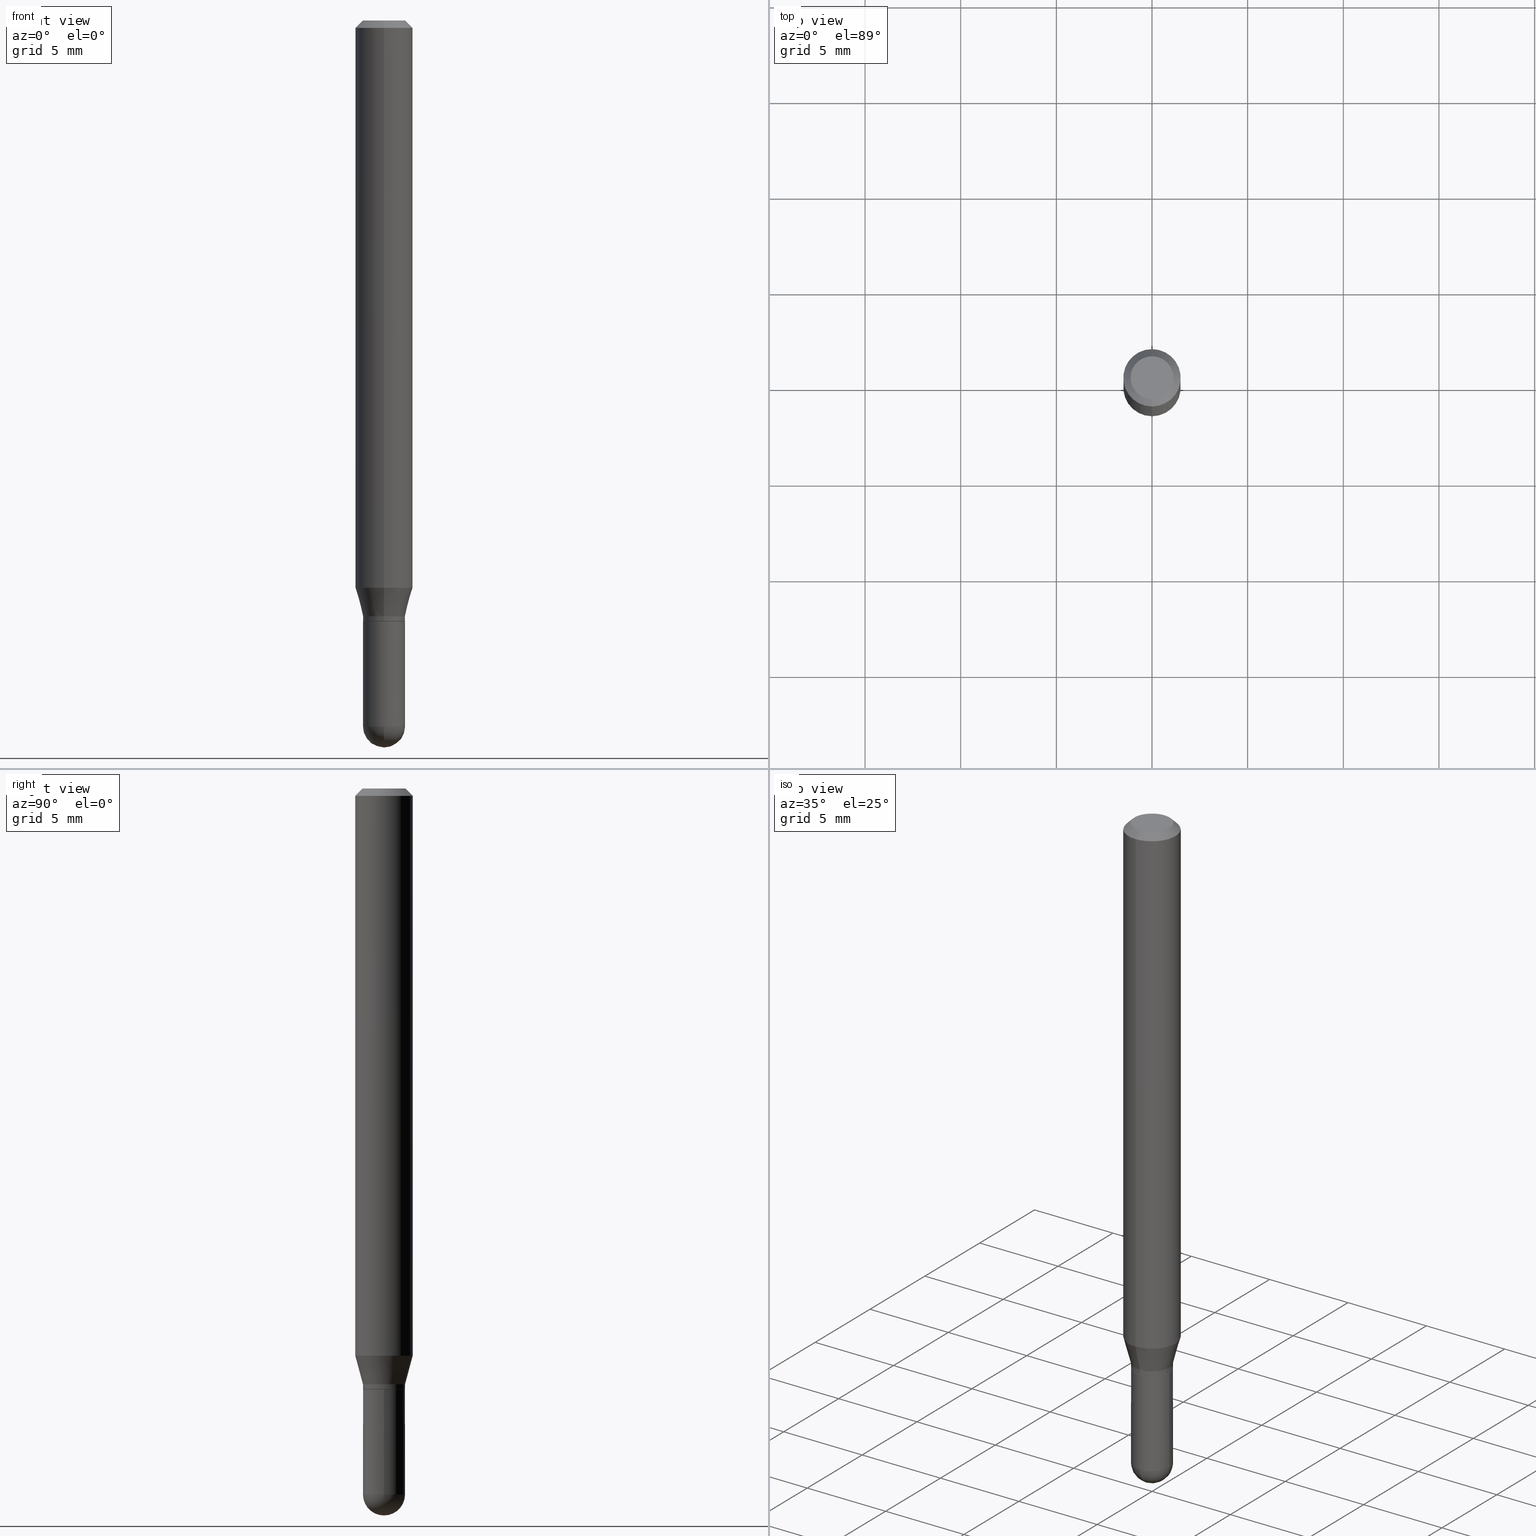
[diagram: canonical four-view strip — front | top / right | iso, engineering-drawing reading convention]
A machine part, canonical four-view strip (front | top / right | iso — engineering-drawing reading convention). The complete STEP part file that produces these views, byte-faithful:
ISO-10303-21;
HEADER;
FILE_DESCRIPTION (( 'STEP AP203' ),
    '1' );
FILE_NAME ('02951.STEP',
    '2024-03-07T22:00:29',
    ( '' ),
    ( '' ),
    'SwSTEP 2.0',
    'SolidWorks 2023',
    '' );
FILE_SCHEMA (( 'CONFIG_CONTROL_DESIGN' ));
ENDSEC;

DATA;
#1 = AXIS2_PLACEMENT_3D ( 'NONE', #422, #149, #453 ) ;
#2 = DIRECTION ( 'NONE',  ( -2.445468806185136597E-29, 3.491481338843145583E-15, 1.000000000000000000 ) ) ;
#3 = PERSON_AND_ORGANIZATION ( #497, #263 ) ;
#4 = CARTESIAN_POINT ( 'NONE',  ( 3.022054084796585019E-29, -4.314853214495008824E-15, -1.235800000000000010 ) ) ;
#5 = LINE ( 'NONE', #321, #451 ) ;
#6 = PERSON_AND_ORGANIZATION ( #497, #263 ) ;
#7 = EDGE_LOOP ( 'NONE', ( #326, #488, #469, #389 ) ) ;
#8 = VERTEX_POINT ( 'NONE', #12 ) ;
#9 = CARTESIAN_POINT ( 'NONE',  ( 3.549074211593619303E-29, -5.077726809711629884E-15, -1.452799999999999869 ) ) ;
#10 = PERSON_AND_ORGANIZATION_ROLE ( 'creator' ) ;
#11 = PRODUCT_RELATED_PRODUCT_CATEGORY ( 'detail', '', ( #296 ) ) ;
#12 = CARTESIAN_POINT ( 'NONE',  ( 3.636202450252602978E-16, 0.04329999999999564059, -1.226099999999999968 ) ) ;
#13 = FACE_OUTER_BOUND ( 'NONE', #207, .T. ) ;
#14 = AXIS2_PLACEMENT_3D ( 'NONE', #9, #445, #345 ) ;
#15 = VERTEX_POINT ( 'NONE', #438 ) ;
#16 = CARTESIAN_POINT ( 'NONE',  ( 0.04330000000000000515, -3.023622839438154129E-16, 2.111384543919640277E-30 ) ) ;
#17 = ORIENTED_EDGE ( 'NONE', *, *, #66, .F. ) ;
#18 = EDGE_CURVE ( 'NONE', #290, #242, #210, .T. ) ;
#19 = ORIENTED_EDGE ( 'NONE', *, *, #338, .F. ) ;
#20 = COORDINATED_UNIVERSAL_TIME_OFFSET ( 5, 0, .BEHIND. ) ;
#21 = FACE_OUTER_BOUND ( 'NONE', #277, .T. ) ;
#22 = AXIS2_PLACEMENT_3D ( 'NONE', #374, #188, #61 ) ;
#23 = CONICAL_SURFACE ( 'NONE', #309, 0.05904999999999999832, 0.7853981633974483900 ) ;
#24 = VECTOR ( 'NONE', #141, 39.37007874015748143 ) ;
#25 = CARTESIAN_POINT ( 'NONE',  ( 4.195754854663675961E-16, 0.05904999999999592519, -1.167320199780790491 ) ) ;
#26 = CARTESIAN_POINT ( 'NONE',  ( 3.022054084796585019E-29, -4.314853214495008824E-15, -1.235800000000000010 ) ) ;
#27 = DIRECTION ( 'NONE',  ( -6.982962677686265922E-15, -1.000000000000000000, 3.505890868245046092E-15 ) ) ;
#28 = FACE_OUTER_BOUND ( 'NONE', #67, .T. ) ;
#29 = CARTESIAN_POINT ( 'NONE',  ( 2.854591987387200469E-29, -4.075752804959620874E-15, -1.167320199780790269 ) ) ;
#30 = EDGE_CURVE ( 'NONE', #446, #260, #482, .T. ) ;
#31 = CIRCLE ( 'NONE', #314, 0.04329999999999964433 ) ;
#32 = AXIS2_PLACEMENT_3D ( 'NONE', #474, #129, #275 ) ;
#33 = ORIENTED_EDGE ( 'NONE', *, *, #506, .F. ) ;
#34 = LINE ( 'NONE', #420, #417 ) ;
#35 = COORDINATED_UNIVERSAL_TIME_OFFSET ( 5, 0, .BEHIND. ) ;
#36 = AXIS2_PLACEMENT_3D ( 'NONE', #177, #329, #94 ) ;
#37 = SECURITY_CLASSIFICATION ( '', '', #172 ) ;
#38 = DATE_AND_TIME ( #307, #404 ) ;
#39 = AXIS2_PLACEMENT_3D ( 'NONE', #487, #90, #97 ) ;
#40 = FACE_OUTER_BOUND ( 'NONE', #93, .T. ) ;
#41 = ORIENTED_EDGE ( 'NONE', *, *, #214, .F. ) ;
#42 = ORIENTED_EDGE ( 'NONE', *, *, #183, .T. ) ;
#43 = CARTESIAN_POINT ( 'NONE',  ( 3.023333085086683703E-29, -4.316518379211780118E-15, -1.236299999999999955 ) ) ;
#44 = LINE ( 'NONE', #448, #280 ) ;
#45 = PERSON_AND_ORGANIZATION_ROLE ( 'creator' ) ;
#46 = ORIENTED_EDGE ( 'NONE', *, *, #197, .F. ) ;
#47 = ORIENTED_EDGE ( 'NONE', *, *, #330, .T. ) ;
#48 = DIRECTION ( 'NONE',  ( -6.982962677686264344E-15, -1.000000000000000000, 3.491546540293744130E-15 ) ) ;
#49 = ORIENTED_EDGE ( 'NONE', *, *, #110, .F. ) ;
#50 = AXIS2_PLACEMENT_3D ( 'NONE', #456, #255, #220 ) ;
#51 = CIRCLE ( 'NONE', #238, 0.04329999999999999127 ) ;
#52 = EDGE_CURVE ( 'NONE', #15, #278, #125, .T. ) ;
#53 = ADVANCED_FACE ( 'NONE', ( #174 ), #327, .F. ) ;
#54 = MANIFOLD_SOLID_BREP ( 'Body-Move/Copy2[1]', #465 ) ;
#55 = ORIENTED_EDGE ( 'NONE', *, *, #464, .T. ) ;
#56 = CARTESIAN_POINT ( 'NONE',  ( -4.051124067684085231E-16, -0.05905000000000005383, -0.01499999999999988495 ) ) ;
#57 = PRODUCT_DEFINITION_SHAPE ( 'NONE', 'NONE',  #375 ) ;
#58 = ORIENTED_EDGE ( 'NONE', *, *, #30, .T. ) ;
#59 = DIRECTION ( 'NONE',  ( -2.445468806185136597E-29, 3.491481338843145583E-15, 1.000000000000000000 ) ) ;
#60 = ORIENTED_EDGE ( 'NONE', *, *, #334, .T. ) ;
#61 = DIRECTION ( 'NONE',  ( -6.982962677686265922E-15, -1.000000000000000000, 6.382822415103419870E-15 ) ) ;
#62 = AXIS2_PLACEMENT_3D ( 'NONE', #467, #322, #353 ) ;
#63 = EDGE_LOOP ( 'NONE', ( #409, #60 ) ) ;
#64 = DIRECTION ( 'NONE',  ( 2.445423276255530617E-29, -3.491546540293744130E-15, -1.000000000000000000 ) ) ;
#65 = CARTESIAN_POINT ( 'NONE',  ( 3.668134914383318048E-31, -5.237319810440648243E-17, -0.01500000000000009139 ) ) ;
#66 = EDGE_CURVE ( 'NONE', #449, #459, #272, .T. ) ;
#67 = EDGE_LOOP ( 'NONE', ( #92, #243, #298, #226 ) ) ;
#68 = CARTESIAN_POINT ( 'NONE',  ( 0.000000000000000000, 0.000000000000000000, 0.000000000000000000 ) ) ;
#69 = EDGE_CURVE ( 'NONE', #278, #8, #447, .T. ) ;
#70 = CC_DESIGN_SECURITY_CLASSIFICATION ( #37, ( #340 ) ) ;
#71 = CYLINDRICAL_SURFACE ( 'NONE', #80, 0.05904999999999999832 ) ;
#72 = MANIFOLD_SOLID_BREP ( 'Body-Move/Copy2[2]', #219 ) ;
#73 = AXIS2_PLACEMENT_3D ( 'NONE', #68, #348, #503 ) ;
#74 = AXIS2_PLACEMENT_3D ( 'NONE', #368, #137, #285 ) ;
#75 = CARTESIAN_POINT ( 'NONE',  ( 0.000000000000000000, 0.000000000000000000, 0.000000000000000000 ) ) ;
#76 = MECHANICAL_CONTEXT ( 'NONE', #504, 'mechanical' ) ;
#77 = CARTESIAN_POINT ( 'NONE',  ( 3.023622839438454882E-16, 0.04329999999999567528, -1.236300000000000177 ) ) ;
#78 = APPROVAL_STATUS ( 'not_yet_approved' ) ;
#79 = DIRECTION ( 'NONE',  ( -2.445423276255530617E-29, 3.491546540293744130E-15, 1.000000000000000000 ) ) ;
#80 = AXIS2_PLACEMENT_3D ( 'NONE', #75, #227, #457 ) ;
#81 = CIRCLE ( 'NONE', #107, 0.04279999999999999083 ) ;
#82 = DIRECTION ( 'NONE',  ( -2.445423276255530617E-29, 3.491546540293744130E-15, 1.000000000000000000 ) ) ;
#83 = CARTESIAN_POINT ( 'NONE',  ( 3.076650045841518654E-16, 0.04329999999999545324, -1.235800000000000232 ) ) ;
#84 =( NAMED_UNIT ( * ) SI_UNIT ( $, .STERADIAN. ) SOLID_ANGLE_UNIT ( ) );
#85 = VECTOR ( 'NONE', #414, 39.37007874015748143 ) ;
#86 = ADVANCED_FACE ( 'NONE', ( #151 ), #381, .T. ) ;
#87 = APPROVAL_PERSON_ORGANIZATION ( #429, #103, #512 ) ;
#88 = EDGE_LOOP ( 'NONE', ( #452, #399, #55, #266 ) ) ;
#89 = DIRECTION ( 'NONE',  ( -4.937700262164674260E-15, -0.7071067811865632269, 0.7071067811865319186 ) ) ;
#90 = DIRECTION ( 'NONE',  ( -2.445423276255530617E-29, 3.491546540293744130E-15, 1.000000000000000000 ) ) ;
#91 = APPROVAL_DATE_TIME ( #128, #256 ) ;
#92 = ORIENTED_EDGE ( 'NONE', *, *, #155, .F. ) ;
#93 = EDGE_LOOP ( 'NONE', ( #411, #505, #400, #245 ) ) ;
#94 = DIRECTION ( 'NONE',  ( -6.982962677686265133E-15, -1.000000000000000000, 3.491546540293743736E-15 ) ) ;
#95 = EDGE_LOOP ( 'NONE', ( #17, #215, #320, #133 ) ) ;
#96 = ORIENTED_EDGE ( 'NONE', *, *, #66, .T. ) ;
#97 = DIRECTION ( 'NONE',  ( -6.982962677686265922E-15, -1.000000000000000000, 3.154558884138878184E-15 ) ) ;
#98 = ADVANCED_FACE ( 'NONE', ( #225 ), #343, .T. ) ;
#99 = EDGE_LOOP ( 'NONE', ( #212, #203, #493, #47, #305 ) ) ;
#100 = CIRCLE ( 'NONE', #450, 0.04330000000000000515 ) ;
#101 = VERTEX_POINT ( 'NONE', #460 ) ;
#102 = ADVANCED_FACE ( 'NONE', ( #300 ), #496, .F. ) ;
#103 = APPROVAL ( #78, 'UNSPECIFIED' ) ;
#104 = CARTESIAN_POINT ( 'NONE',  ( 3.552777081625765848E-29, -5.072424089071321929E-15, -1.452799999999999869 ) ) ;
#105 = CALENDAR_DATE ( 2024, 7, 3 ) ;
#106 = LINE ( 'NONE', #180, #85 ) ;
#107 = AXIS2_PLACEMENT_3D ( 'NONE', #331, #369, #175 ) ;
#108 = CC_DESIGN_DATE_AND_TIME_ASSIGNMENT ( #38, #475, ( #37 ) ) ;
#109 = VERTEX_POINT ( 'NONE', #25 ) ;
#110 = EDGE_CURVE ( 'NONE', #8, #476, #237, .T. ) ;
#111 = DIRECTION ( 'NONE',  ( 1.000000000000000000, -6.982962677686267499E-15, 0.000000000000000000 ) ) ;
#112 = ORIENTED_EDGE ( 'NONE', *, *, #430, .T. ) ;
#113 = DIRECTION ( 'NONE',  ( -2.445423276255530617E-29, 3.491546540293744525E-15, 1.000000000000000000 ) ) ;
#114 = EDGE_CURVE ( 'NONE', #101, #446, #106, .T. ) ;
#115 = DIRECTION ( 'NONE',  ( -2.445423276255530617E-29, 3.491546540293744525E-15, 1.000000000000000000 ) ) ;
#116 = PERSON_AND_ORGANIZATION_ROLE ( 'classification_officer' ) ;
#117 = AXIS2_PLACEMENT_3D ( 'NONE', #4, #167, #246 ) ;
#118 = AXIS2_PLACEMENT_3D ( 'NONE', #473, #79, #162 ) ;
#119 = ORIENTED_EDGE ( 'NONE', *, *, #430, .F. ) ;
#120 = APPROVAL_PERSON_ORGANIZATION ( #3, #256, #396 ) ;
#121 = CC_DESIGN_DATE_AND_TIME_ASSIGNMENT ( #316, #131, ( #375 ) ) ;
#122 = DIRECTION ( 'NONE',  ( -2.445423276255530617E-29, 3.491546540293744130E-15, 1.000000000000000000 ) ) ;
#123 = CARTESIAN_POINT ( 'NONE',  ( -0.04329999999999999127, -4.386806229557427606E-15, -1.236299999999999955 ) ) ;
#124 = DIRECTION ( 'NONE',  ( -2.445423276255530617E-29, 3.491546540293744130E-15, 1.000000000000000000 ) ) ;
#125 = CIRCLE ( 'NONE', #117, 0.04329999999999964433 ) ;
#126 =( GEOMETRIC_REPRESENTATION_CONTEXT ( 3 ) GLOBAL_UNCERTAINTY_ASSIGNED_CONTEXT ( ( #304 ) ) GLOBAL_UNIT_ASSIGNED_CONTEXT ( ( #344, #196, #84 ) ) REPRESENTATION_CONTEXT ( 'NONE', 'WORKASPACE' ) );
#127 = CARTESIAN_POINT ( 'NONE',  ( -2.988708026049418867E-16, -0.04280000000000431376, -1.236299999999999288 ) ) ;
#128 = DATE_AND_TIME ( #281, #264 ) ;
#129 = DIRECTION ( 'NONE',  ( -2.445423276255530617E-29, 3.491546540293744130E-15, 1.000000000000000000 ) ) ;
#130 = CARTESIAN_POINT ( 'NONE',  ( 3.023276796434711539E-29, -4.316598987765154055E-15, -1.236299999999999510 ) ) ;
#131 = DATE_TIME_ROLE ( 'creation_date' ) ;
#132 = CIRCLE ( 'NONE', #471, 0.05904999999999999832 ) ;
#133 = ORIENTED_EDGE ( 'NONE', *, *, #185, .F. ) ;
#134 = AXIS2_PLACEMENT_3D ( 'NONE', #356, #193, #510 ) ;
#135 = VERTEX_POINT ( 'NONE', #303 ) ;
#136 =( LENGTH_UNIT ( ) NAMED_UNIT ( * ) SI_UNIT ( $, .METRE. ) );
#137 = DIRECTION ( 'NONE',  ( -2.445423276255530617E-29, 3.491546540293744130E-15, 1.000000000000000000 ) ) ;
#138 = DIRECTION ( 'NONE',  ( -6.982962677686265133E-15, -1.000000000000000000, 0.000000000000000000 ) ) ;
#139 = FACE_OUTER_BOUND ( 'NONE', #461, .T. ) ;
#140 = ORIENTED_EDGE ( 'NONE', *, *, #346, .F. ) ;
#141 = DIRECTION ( 'NONE',  ( 5.024295867788190974E-15, 0.7071067811865681119, 0.7071067811865270336 ) ) ;
#142 = EDGE_LOOP ( 'NONE', ( #287, #206, #217, #223 ) ) ;
#143 = AXIS2_PLACEMENT_3D ( 'NONE', #77, #498, #229 ) ;
#144 = LINE ( 'NONE', #56, #509 ) ;
#145 = AXIS2_PLACEMENT_3D ( 'NONE', #311, #122, #269 ) ;
#146 = ORIENTED_EDGE ( 'NONE', *, *, #470, .F. ) ;
#147 = DIRECTION ( 'NONE',  ( 6.982962677686265922E-15, 1.000000000000000000, -3.505890868245046092E-15 ) ) ;
#148 = EDGE_CURVE ( 'NONE', #8, #109, #351, .T. ) ;
#149 = DIRECTION ( 'NONE',  ( -2.445423276255530617E-29, 3.491546540293744130E-15, 1.000000000000000000 ) ) ;
#150 = APPROVAL ( #166, 'UNSPECIFIED' ) ;
#151 = FACE_OUTER_BOUND ( 'NONE', #95, .T. ) ;
#152 = DIRECTION ( 'NONE',  ( -2.445423276255530617E-29, 3.491546540293744525E-15, 1.000000000000000000 ) ) ;
#153 = AXIS2_PLACEMENT_3D ( 'NONE', #189, #391, #511 ) ;
#154 = DIRECTION ( 'NONE',  ( -2.445468806185136597E-29, 3.491481338843145583E-15, 1.000000000000000000 ) ) ;
#155 = EDGE_CURVE ( 'NONE', #109, #135, #34, .T. ) ;
#156 = ORIENTED_EDGE ( 'NONE', *, *, #330, .F. ) ;
#157 = DIRECTION ( 'NONE',  ( -2.445468806185136597E-29, 3.491481338843145583E-15, 1.000000000000000000 ) ) ;
#158 = CONICAL_SURFACE ( 'NONE', #134, 0.04279999999999999083, 0.7853981633974739252 ) ;
#159 = ADVANCED_FACE ( 'NONE', ( #337 ), #23, .T. ) ;
#160 = DIMENSIONAL_EXPONENTS ( 1.000000000000000000, 0.000000000000000000, 0.000000000000000000, 0.000000000000000000, 0.000000000000000000, 0.000000000000000000, 0.000000000000000000 ) ;
#161 = LOCAL_TIME ( 17, 0, 29.00000000000000000, #20 ) ;
#162 = DIRECTION ( 'NONE',  ( -6.982962677686265922E-15, -1.000000000000000000, 3.505890868245046092E-15 ) ) ;
#163 = ADVANCED_FACE ( 'NONE', ( #28 ), #71, .T. ) ;
#164 = COORDINATED_UNIVERSAL_TIME_OFFSET ( 5, 0, .BEHIND. ) ;
#165 = CIRCLE ( 'NONE', #153, 0.04330000000000000515 ) ;
#166 = APPROVAL_STATUS ( 'not_yet_approved' ) ;
#167 = DIRECTION ( 'NONE',  ( -2.445423276255530617E-29, 3.491546540293744130E-15, 1.000000000000000000 ) ) ;
#168 = DIRECTION ( 'NONE',  ( -2.445468806185136597E-29, 3.491481338843145583E-15, 1.000000000000000000 ) ) ;
#169 = DATE_AND_TIME ( #442, #441 ) ;
#170 = ORIENTED_EDGE ( 'NONE', *, *, #431, .T. ) ;
#171 = DIRECTION ( 'NONE',  ( 6.982962677686265922E-15, 1.000000000000000000, -3.505890868245046092E-15 ) ) ;
#172 = SECURITY_CLASSIFICATION_LEVEL ( 'unclassified' ) ;
#173 = EDGE_LOOP ( 'NONE', ( #190, #58 ) ) ;
#174 = FACE_OUTER_BOUND ( 'NONE', #370, .T. ) ;
#175 = DIRECTION ( 'NONE',  ( -6.982962677686265922E-15, -1.000000000000000000, 6.382822415103419870E-15 ) ) ;
#176 = VERTEX_POINT ( 'NONE', #387 ) ;
#177 = CARTESIAN_POINT ( 'NONE',  ( 2.241522435601996045E-45, -3.200419322498977883E-31, -9.166194079228073088E-17 ) ) ;
#178 = EDGE_LOOP ( 'NONE', ( #385, #405, #170, #350 ) ) ;
#179 = VERTEX_POINT ( 'NONE', #184 ) ;
#180 = CARTESIAN_POINT ( 'NONE',  ( -0.04330000000000000515, 3.076650045841234171E-16, -2.129898894080374053E-30 ) ) ;
#181 = AXIS2_PLACEMENT_3D ( 'NONE', #262, #499, #380 ) ;
#182 = AXIS2_PLACEMENT_3D ( 'NONE', #201, #2, #395 ) ;
#183 = EDGE_CURVE ( 'NONE', #278, #15, #31, .T. ) ;
#184 = CARTESIAN_POINT ( 'NONE',  ( -4.123439461173736383E-16, -0.05905000000000005383, -0.01499999999999988495 ) ) ;
#185 = EDGE_CURVE ( 'NONE', #459, #290, #100, .T. ) ;
#186 = DIRECTION ( 'NONE',  ( -6.982962677686266711E-15, -1.000000000000000000, 6.309117768277795812E-15 ) ) ;
#187 = LINE ( 'NONE', #500, #388 ) ;
#188 = DIRECTION ( 'NONE',  ( -2.445423276255530617E-29, 3.491546540293744130E-15, 1.000000000000000000 ) ) ;
#189 = CARTESIAN_POINT ( 'NONE',  ( 3.552777081625765848E-29, -5.072424089071321929E-15, -1.452799999999999869 ) ) ;
#190 = ORIENTED_EDGE ( 'NONE', *, *, #470, .T. ) ;
#191 = COORDINATED_UNIVERSAL_TIME_OFFSET ( 5, 0, .BEHIND. ) ;
#192 = FACE_OUTER_BOUND ( 'NONE', #424, .T. ) ;
#193 = DIRECTION ( 'NONE',  ( -2.445423276255530617E-29, 3.491546540293744130E-15, 1.000000000000000000 ) ) ;
#194 = EDGE_CURVE ( 'NONE', #15, #476, #306, .T. ) ;
#195 = CC_DESIGN_PERSON_AND_ORGANIZATION_ASSIGNMENT ( #274, #205, ( #340 ) ) ;
#196 =( NAMED_UNIT ( * ) PLANE_ANGLE_UNIT ( ) SI_UNIT ( $, .RADIAN. ) );
#197 = EDGE_CURVE ( 'NONE', #284, #455, #354, .T. ) ;
#198 = AXIS2_PLACEMENT_3D ( 'NONE', #333, #491, #294 ) ;
#199 = APPROVAL_DATE_TIME ( #169, #103 ) ;
#200 = SPHERICAL_SURFACE ( 'NONE', #349, 0.04330000000000003985 ) ;
#201 = CARTESIAN_POINT ( 'NONE',  ( 0.000000000000000000, 0.000000000000000000, 0.000000000000000000 ) ) ;
#202 = APPLICATION_PROTOCOL_DEFINITION ( 'international standard', 'config_control_design', 1994, #504 ) ;
#203 = ORIENTED_EDGE ( 'NONE', *, *, #214, .T. ) ;
#204 = DIRECTION ( 'NONE',  ( -6.982962677686265922E-15, -1.000000000000000000, 6.309117768277739014E-15 ) ) ;
#205 = PERSON_AND_ORGANIZATION_ROLE ( 'design_supplier' ) ;
#206 = ORIENTED_EDGE ( 'NONE', *, *, #155, .T. ) ;
#207 = EDGE_LOOP ( 'NONE', ( #495, #42, #365, #49 ) ) ;
#208 = FACE_OUTER_BOUND ( 'NONE', #7, .T. ) ;
#209 = ADVANCED_FACE ( 'NONE', ( #21 ), #297, .T. ) ;
#210 = CIRCLE ( 'NONE', #198, 0.04330000000000000515 ) ;
#211 = CONICAL_SURFACE ( 'NONE', #378, 0.04329999999999991495, 0.2617993877991512952 ) ;
#212 = ORIENTED_EDGE ( 'NONE', *, *, #114, .F. ) ;
#213 = FACE_OUTER_BOUND ( 'NONE', #173, .T. ) ;
#214 = EDGE_CURVE ( 'NONE', #101, #459, #308, .T. ) ;
#215 = ORIENTED_EDGE ( 'NONE', *, *, #401, .T. ) ;
#216 = APPROVAL_ROLE ( '' ) ;
#217 = ORIENTED_EDGE ( 'NONE', *, *, #431, .F. ) ;
#218 = DIRECTION ( 'NONE',  ( 1.000000000000000000, -6.982962677686269866E-15, 0.000000000000000000 ) ) ;
#219 = CLOSED_SHELL ( 'NONE', ( #209, #286, #393, #291, #342, #283, #163, #159, #102, #53, #382, #390 ) ) ;
#220 = DIRECTION ( 'NONE',  ( 6.982962677686265922E-15, 1.000000000000000000, -3.491546540293744525E-15 ) ) ;
#221 = AXIS2_PLACEMENT_3D ( 'NONE', #371, #248, #48 ) ;
#222 = CARTESIAN_POINT ( 'NONE',  ( 0.04329999999999999127, -4.618880663155595580E-15, -1.236299999999999955 ) ) ;
#223 = ORIENTED_EDGE ( 'NONE', *, *, #270, .F. ) ;
#224 = DIRECTION ( 'NONE',  ( -2.445423276255530617E-29, 3.491546540293744130E-15, 1.000000000000000000 ) ) ;
#225 = FACE_OUTER_BOUND ( 'NONE', #99, .T. ) ;
#226 = ORIENTED_EDGE ( 'NONE', *, *, #265, .F. ) ;
#227 = DIRECTION ( 'NONE',  ( -2.445423276255530617E-29, 3.491546540293744130E-15, 1.000000000000000000 ) ) ;
#228 = AXIS2_PLACEMENT_3D ( 'NONE', #29, #271, #364 ) ;
#229 = DIRECTION ( 'NONE',  ( -1.000000000000000000, 6.982962677686265922E-15, -4.876176775795935793E-29 ) ) ;
#230 = AXIS2_PLACEMENT_3D ( 'NONE', #410, #489, #171 ) ;
#231 = DIRECTION ( 'NONE',  ( -6.982962677686265922E-15, -1.000000000000000000, 3.491546540293744130E-15 ) ) ;
#232 = CC_DESIGN_PERSON_AND_ORGANIZATION_ASSIGNMENT ( #6, #267, ( #296 ) ) ;
#233 = CARTESIAN_POINT ( 'NONE',  ( 2.998333479016906095E-29, -4.280985213054159645E-15, -1.226099999999999968 ) ) ;
#234 = COORDINATED_UNIVERSAL_TIME_OFFSET ( 5, 0, .BEHIND. ) ;
#235 = FACE_OUTER_BOUND ( 'NONE', #372, .T. ) ;
#236 = ADVANCED_FACE ( 'NONE', ( #213 ), #458, .F. ) ;
#237 = CIRCLE ( 'NONE', #1, 0.04329999999999991495 ) ;
#238 = AXIS2_PLACEMENT_3D ( 'NONE', #43, #168, #295 ) ;
#239 = DIRECTION ( 'NONE',  ( -6.982962677686265922E-15, -1.000000000000000000, 3.491546540293744525E-15 ) ) ;
#240 = DIRECTION ( 'NONE',  ( 4.937700262164548042E-15, 0.7071067811865451302, -0.7071067811865499042 ) ) ;
#241 = PERSON_AND_ORGANIZATION ( #497, #263 ) ;
#242 = VERTEX_POINT ( 'NONE', #426 ) ;
#243 = ORIENTED_EDGE ( 'NONE', *, *, #276, .T. ) ;
#244 = DIRECTION ( 'NONE',  ( -1.807323732225337239E-15, -0.2588190451025191852, 0.9659258262890687563 ) ) ;
#245 = ORIENTED_EDGE ( 'NONE', *, *, #276, .F. ) ;
#246 = DIRECTION ( 'NONE',  ( -6.982962677686266711E-15, -1.000000000000000000, 6.309117768277795812E-15 ) ) ;
#247 = LINE ( 'NONE', #402, #24 ) ;
#248 = DIRECTION ( 'NONE',  ( -2.445423276255530617E-29, 3.491546540293744130E-15, 1.000000000000000000 ) ) ;
#249 = VECTOR ( 'NONE', #425, 39.37007874015748854 ) ;
#250 = CIRCLE ( 'NONE', #228, 0.05904999999999999832 ) ;
#251 = ORIENTED_EDGE ( 'NONE', *, *, #197, .T. ) ;
#252 = VERTEX_POINT ( 'NONE', #257 ) ;
#253 = DIRECTION ( 'NONE',  ( -2.445468806185136597E-29, 3.491481338843145583E-15, 1.000000000000000000 ) ) ;
#254 = AXIS2_PLACEMENT_3D ( 'NONE', #104, #253, #341 ) ;
#255 = DIRECTION ( 'NONE',  ( 2.445423276255530056E-29, -3.491546540293744525E-15, -1.000000000000000000 ) ) ;
#256 = APPROVAL ( #472, 'UNSPECIFIED' ) ;
#257 = CARTESIAN_POINT ( 'NONE',  ( -3.536586717851222218E-16, -0.04404999999999999888, 6.214068430765867686E-17 ) ) ;
#258 = ORIENTED_EDGE ( 'NONE', *, *, #352, .F. ) ;
#259 = CARTESIAN_POINT ( 'NONE',  ( -3.023622839438137365E-16, -0.04329999999999978311, 1.511839651947183576E-16 ) ) ;
#260 = VERTEX_POINT ( 'NONE', #222 ) ;
#261 = CARTESIAN_POINT ( 'NONE',  ( 0.000000000000000000, 0.000000000000000000, 0.000000000000000000 ) ) ;
#262 = CARTESIAN_POINT ( 'NONE',  ( 3.549074211593619303E-29, -5.077726809711629884E-15, -1.452799999999999869 ) ) ;
#263 = ORGANIZATION ( 'UNSPECIFIED', 'UNSPECIFIED', '' ) ;
#264 = LOCAL_TIME ( 17, 0, 29.00000000000000000, #234 ) ;
#265 = EDGE_CURVE ( 'NONE', #135, #179, #132, .T. ) ;
#266 = ORIENTED_EDGE ( 'NONE', *, *, #265, .T. ) ;
#267 = PERSON_AND_ORGANIZATION_ROLE ( 'design_owner' ) ;
#268 = DIRECTION ( 'NONE',  ( -6.982962677686265922E-15, -1.000000000000000000, 3.154558884138878184E-15 ) ) ;
#269 = DIRECTION ( 'NONE',  ( -6.982962677686265922E-15, -1.000000000000000000, 3.154558884138878184E-15 ) ) ;
#270 = EDGE_CURVE ( 'NONE', #176, #179, #187, .T. ) ;
#271 = DIRECTION ( 'NONE',  ( -2.445423276255530617E-29, 3.491546540293744130E-15, 1.000000000000000000 ) ) ;
#272 = CIRCLE ( 'NONE', #397, 0.04330000000000003985 ) ;
#273 = CIRCLE ( 'NONE', #118, 0.05904999999999999832 ) ;
#274 = PERSON_AND_ORGANIZATION ( #497, #263 ) ;
#275 = DIRECTION ( 'NONE',  ( -6.982962677686265133E-15, -1.000000000000000000, 3.491546540293743736E-15 ) ) ;
#276 = EDGE_CURVE ( 'NONE', #109, #176, #250, .T. ) ;
#277 = EDGE_LOOP ( 'NONE', ( #282, #477, #119, #366 ) ) ;
#278 = VERTEX_POINT ( 'NONE', #83 ) ;
#279 = CARTESIAN_POINT ( 'NONE',  ( -3.023622839437799634E-16, -0.04330000000000509136, -1.452799999999999647 ) ) ;
#280 = VECTOR ( 'NONE', #244, 39.37007874015748854 ) ;
#281 = CALENDAR_DATE ( 2024, 7, 3 ) ;
#282 = ORIENTED_EDGE ( 'NONE', *, *, #52, .T. ) ;
#283 = ADVANCED_FACE ( 'NONE', ( #40 ), #211, .T. ) ;
#284 = VERTEX_POINT ( 'NONE', #127 ) ;
#285 = DIRECTION ( 'NONE',  ( -6.982962677686265922E-15, -1.000000000000000000, 6.382822415103419870E-15 ) ) ;
#286 = ADVANCED_FACE ( 'NONE', ( #192 ), #158, .T. ) ;
#287 = ORIENTED_EDGE ( 'NONE', *, *, #346, .T. ) ;
#288 = LENGTH_MEASURE_WITH_UNIT ( LENGTH_MEASURE( 0.02539999999999999897 ), #136 );
#289 = CARTESIAN_POINT ( 'NONE',  ( 2.854591987387200469E-29, -4.075752804959620874E-15, -1.167320199780790269 ) ) ;
#290 = VERTEX_POINT ( 'NONE', #358 ) ;
#291 = ADVANCED_FACE ( 'NONE', ( #357 ), #313, .T. ) ;
#292 = VECTOR ( 'NONE', #115, 39.37007874015748143 ) ;
#293 = AXIS2_PLACEMENT_3D ( 'NONE', #289, #403, #478 ) ;
#294 = DIRECTION ( 'NONE',  ( 1.000000000000000000, -6.982962677686267499E-15, 0.000000000000000000 ) ) ;
#295 = DIRECTION ( 'NONE',  ( 1.000000000000000000, -6.982962677686269866E-15, 0.000000000000000000 ) ) ;
#296 = PRODUCT ( '02951', '02951', '', ( #76 ) ) ;
#297 = CYLINDRICAL_SURFACE ( 'NONE', #73, 0.04329999999999978311 ) ;
#298 = ORIENTED_EDGE ( 'NONE', *, *, #270, .T. ) ;
#299 = CARTESIAN_POINT ( 'NONE',  ( 3.076650045841217901E-16, 0.04329999999999978311, -1.511839651947183576E-16 ) ) ;
#300 = FACE_OUTER_BOUND ( 'NONE', #63, .T. ) ;
#301 = AXIS2_PLACEMENT_3D ( 'NONE', #434, #82, #231 ) ;
#302 = ADVANCED_FACE ( 'NONE', ( #394 ), #435, .T. ) ;
#303 = CARTESIAN_POINT ( 'NONE',  ( 4.195754854663679906E-16, 0.05904999999999995669, -0.01500000000000029955 ) ) ;
#304 = UNCERTAINTY_MEASURE_WITH_UNIT (LENGTH_MEASURE( 1.000000000000000082E-05 ), #344, 'distance_accuracy_value', 'NONE');
#305 = ORIENTED_EDGE ( 'NONE', *, *, #30, .F. ) ;
#306 = LINE ( 'NONE', #259, #292 ) ;
#307 = CALENDAR_DATE ( 2024, 7, 3 ) ;
#308 = CIRCLE ( 'NONE', #254, 0.04330000000000000515 ) ;
#309 = AXIS2_PLACEMENT_3D ( 'NONE', #384, #64, #147 ) ;
#310 = CC_DESIGN_APPROVAL ( #256, ( #340 ) ) ;
#311 = CARTESIAN_POINT ( 'NONE',  ( 2.998333479016906095E-29, -4.280985213054159645E-15, -1.226099999999999968 ) ) ;
#312 = EDGE_CURVE ( 'NONE', #490, #252, #336, .T. ) ;
#313 = CYLINDRICAL_SURFACE ( 'NONE', #301, 0.05904999999999999832 ) ;
#314 = AXIS2_PLACEMENT_3D ( 'NONE', #26, #224, #186 ) ;
#315 = VECTOR ( 'NONE', #440, 39.37007874015748143 ) ;
#316 = DATE_AND_TIME ( #480, #355 ) ;
#317 = PERSON_AND_ORGANIZATION ( #497, #263 ) ;
#318 = APPROVAL_PERSON_ORGANIZATION ( #362, #150, #216 ) ;
#319 = ORIENTED_EDGE ( 'NONE', *, *, #52, .F. ) ;
#320 = ORIENTED_EDGE ( 'NONE', *, *, #18, .F. ) ;
#321 = CARTESIAN_POINT ( 'NONE',  ( -2.988708026049418867E-16, -0.04280000000000431376, -1.236299999999999288 ) ) ;
#322 = DIRECTION ( 'NONE',  ( 0.000000000000000000, 0.000000000000000000, 1.000000000000000000 ) ) ;
#323 = ORIENTED_EDGE ( 'NONE', *, *, #419, .T. ) ;
#324 = CYLINDRICAL_SURFACE ( 'NONE', #221, 0.04329999999999978311 ) ;
#325 = CIRCLE ( 'NONE', #36, 0.04404999999999999888 ) ;
#326 = ORIENTED_EDGE ( 'NONE', *, *, #479, .F. ) ;
#327 = PLANE ( 'NONE',  #501 ) ;
#328 = DIRECTION ( 'NONE',  ( -4.851104656540964275E-15, -0.7071067811865500152, -0.7071067811865450192 ) ) ;
#329 = DIRECTION ( 'NONE',  ( -2.445423276255530617E-29, 3.491546540293744130E-15, 1.000000000000000000 ) ) ;
#330 = EDGE_CURVE ( 'NONE', #290, #260, #436, .T. ) ;
#331 = CARTESIAN_POINT ( 'NONE',  ( 3.023276796434711539E-29, -4.316598987765154055E-15, -1.236299999999999510 ) ) ;
#332 = ORIENTED_EDGE ( 'NONE', *, *, #18, .T. ) ;
#333 = CARTESIAN_POINT ( 'NONE',  ( 3.552777081625765848E-29, -5.072424089071321929E-15, -1.452799999999999869 ) ) ;
#334 = EDGE_CURVE ( 'NONE', #252, #490, #325, .T. ) ;
#335 = ORIENTED_EDGE ( 'NONE', *, *, #401, .F. ) ;
#336 = CIRCLE ( 'NONE', #32, 0.04404999999999999888 ) ;
#337 = FACE_OUTER_BOUND ( 'NONE', #88, .T. ) ;
#338 = EDGE_CURVE ( 'NONE', #455, #284, #81, .T. ) ;
#339 = CC_DESIGN_PERSON_AND_ORGANIZATION_ASSIGNMENT ( #317, #10, ( #375 ) ) ;
#340 = PRODUCT_DEFINITION_FORMATION_WITH_SPECIFIED_SOURCE ( 'ANY', '', #296, .NOT_KNOWN. ) ;
#341 = DIRECTION ( 'NONE',  ( 1.000000000000000000, -6.982962677686267499E-15, 0.000000000000000000 ) ) ;
#342 = ADVANCED_FACE ( 'NONE', ( #139 ), #502, .T. ) ;
#343 = CYLINDRICAL_SURFACE ( 'NONE', #386, 0.04330000000000000515 ) ;
#344 =( CONVERSION_BASED_UNIT ( 'INCH', #288 ) LENGTH_UNIT ( ) NAMED_UNIT ( #160 ) );
#345 = DIRECTION ( 'NONE',  ( 7.105427357600999492E-15, 1.000000000000000000, 0.000000000000000000 ) ) ;
#346 = EDGE_CURVE ( 'NONE', #176, #109, #398, .T. ) ;
#347 = VECTOR ( 'NONE', #113, 39.37007874015748143 ) ;
#348 = DIRECTION ( 'NONE',  ( -2.445423276255530617E-29, 3.491546540293744130E-15, 1.000000000000000000 ) ) ;
#349 = AXIS2_PLACEMENT_3D ( 'NONE', #439, #363, #204 ) ;
#350 = ORIENTED_EDGE ( 'NONE', *, *, #464, .F. ) ;
#351 = LINE ( 'NONE', #462, #249 ) ;
#352 = EDGE_CURVE ( 'NONE', #476, #176, #44, .T. ) ;
#353 = DIRECTION ( 'NONE',  ( 1.000000000000000000, 0.000000000000000000, 0.000000000000000000 ) ) ;
#354 = CIRCLE ( 'NONE', #22, 0.04279999999999999083 ) ;
#355 = LOCAL_TIME ( 17, 0, 29.00000000000000000, #164 ) ;
#356 = CARTESIAN_POINT ( 'NONE',  ( 3.023276796434711539E-29, -4.316598987765154055E-15, -1.236299999999999510 ) ) ;
#357 = FACE_OUTER_BOUND ( 'NONE', #142, .T. ) ;
#358 = CARTESIAN_POINT ( 'NONE',  ( 0.04330000000000000515, -4.996833518085365697E-15, -1.452799999999999869 ) ) ;
#359 = AXIS2_PLACEMENT_3D ( 'NONE', #412, #59, #218 ) ;
#360 = CIRCLE ( 'NONE', #145, 0.04329999999999991495 ) ;
#361 = APPLICATION_CONTEXT ( 'configuration controlled 3d designs of mechanical parts and assemblies' ) ;
#362 = PERSON_AND_ORGANIZATION ( #497, #263 ) ;
#363 = DIRECTION ( 'NONE',  ( 1.000000000000000000, -6.982962677686265922E-15, 4.883557194083112340E-29 ) ) ;
#364 = DIRECTION ( 'NONE',  ( -6.982962677686265922E-15, -1.000000000000000000, 4.626330217890369336E-15 ) ) ;
#365 = ORIENTED_EDGE ( 'NONE', *, *, #194, .T. ) ;
#366 = ORIENTED_EDGE ( 'NONE', *, *, #194, .F. ) ;
#367 = CARTESIAN_POINT ( 'NONE',  ( 3.058886477447519585E-16, 0.04279999999999567484, -1.236299999999999955 ) ) ;
#368 = CARTESIAN_POINT ( 'NONE',  ( 3.023276796434711539E-29, -4.316598987765154055E-15, -1.236299999999999510 ) ) ;
#369 = DIRECTION ( 'NONE',  ( -2.445423276255530617E-29, 3.491546540293744130E-15, 1.000000000000000000 ) ) ;
#370 = EDGE_LOOP ( 'NONE', ( #46, #19 ) ) ;
#371 = CARTESIAN_POINT ( 'NONE',  ( 0.000000000000000000, 0.000000000000000000, 0.000000000000000000 ) ) ;
#372 = EDGE_LOOP ( 'NONE', ( #335, #96, #41, #437 ) ) ;
#373 = EDGE_LOOP ( 'NONE', ( #323, #421, #146, #156, #332 ) ) ;
#374 = CARTESIAN_POINT ( 'NONE',  ( 3.023276796434711539E-29, -4.316598987765154055E-15, -1.236299999999999510 ) ) ;
#375 = PRODUCT_DEFINITION ( 'UNKNOWN', '', #340, #413 ) ;
#376 = APPROVAL_DATE_TIME ( #454, #150 ) ;
#377 = CC_DESIGN_PERSON_AND_ORGANIZATION_ASSIGNMENT ( #241, #45, ( #340 ) ) ;
#378 = AXIS2_PLACEMENT_3D ( 'NONE', #233, #124, #268 ) ;
#379 = ORIENTED_EDGE ( 'NONE', *, *, #479, .T. ) ;
#380 = DIRECTION ( 'NONE',  ( -6.982962677686265922E-15, -1.000000000000000000, 6.309117768277739014E-15 ) ) ;
#381 = SPHERICAL_SURFACE ( 'NONE', #181, 0.04330000000000003985 ) ;
#382 = ADVANCED_FACE ( 'NONE', ( #208 ), #392, .T. ) ;
#383 = DIRECTION ( 'NONE',  ( -2.445423276255530617E-29, 3.491546540293744130E-15, 1.000000000000000000 ) ) ;
#384 = CARTESIAN_POINT ( 'NONE',  ( 3.668134914383318048E-31, -5.237319810440648243E-17, -0.01500000000000009139 ) ) ;
#385 = ORIENTED_EDGE ( 'NONE', *, *, #334, .F. ) ;
#386 = AXIS2_PLACEMENT_3D ( 'NONE', #261, #154, #427 ) ;
#387 = CARTESIAN_POINT ( 'NONE',  ( -4.123439461173455351E-16, -0.05905000000000407839, -1.167320199780790047 ) ) ;
#388 = VECTOR ( 'NONE', #152, 39.37007874015748143 ) ;
#389 = ORIENTED_EDGE ( 'NONE', *, *, #183, .F. ) ;
#390 = ADVANCED_FACE ( 'NONE', ( #13 ), #324, .T. ) ;
#391 = DIRECTION ( 'NONE',  ( -2.445468806185136597E-29, 3.491481338843145583E-15, 1.000000000000000000 ) ) ;
#392 = CONICAL_SURFACE ( 'NONE', #74, 0.04279999999999999083, 0.7853981633974739252 ) ;
#393 = ADVANCED_FACE ( 'NONE', ( #408 ), #466, .T. ) ;
#394 = FACE_OUTER_BOUND ( 'NONE', #373, .T. ) ;
#395 = DIRECTION ( 'NONE',  ( 1.000000000000000000, -6.982962677686267499E-15, 4.876176775795935232E-29 ) ) ;
#396 = APPROVAL_ROLE ( '' ) ;
#397 = AXIS2_PLACEMENT_3D ( 'NONE', #486, #443, #138 ) ;
#398 = CIRCLE ( 'NONE', #293, 0.05904999999999999832 ) ;
#399 = ORIENTED_EDGE ( 'NONE', *, *, #312, .F. ) ;
#400 = ORIENTED_EDGE ( 'NONE', *, *, #352, .T. ) ;
#401 = EDGE_CURVE ( 'NONE', #449, #242, #418, .T. ) ;
#402 = CARTESIAN_POINT ( 'NONE',  ( 3.041122909053529883E-16, 0.04279999999999567484, -1.236299999999999955 ) ) ;
#403 = DIRECTION ( 'NONE',  ( -2.445423276255530617E-29, 3.491546540293744130E-15, 1.000000000000000000 ) ) ;
#404 = LOCAL_TIME ( 17, 0, 29.00000000000000000, #191 ) ;
#405 = ORIENTED_EDGE ( 'NONE', *, *, #468, .T. ) ;
#406 = ORIENTED_EDGE ( 'NONE', *, *, #148, .T. ) ;
#407 = CARTESIAN_POINT ( 'NONE',  ( -3.023622839437847459E-16, -0.04330000000000419624, -1.226099999999999746 ) ) ;
#408 = FACE_OUTER_BOUND ( 'NONE', #178, .T. ) ;
#409 = ORIENTED_EDGE ( 'NONE', *, *, #312, .T. ) ;
#410 = CARTESIAN_POINT ( 'NONE',  ( 3.668134914383318048E-31, -5.237319810440648243E-17, -0.01500000000000009139 ) ) ;
#411 = ORIENTED_EDGE ( 'NONE', *, *, #148, .F. ) ;
#412 = CARTESIAN_POINT ( 'NONE',  ( 3.023333085086683703E-29, -4.316518379211780118E-15, -1.236299999999999955 ) ) ;
#413 = DESIGN_CONTEXT ( 'detailed design', #361, 'design' ) ;
#414 = DIRECTION ( 'NONE',  ( -2.445468806185136877E-29, 3.491481338843145188E-15, 1.000000000000000000 ) ) ;
#415 = CC_DESIGN_PERSON_AND_ORGANIZATION_ASSIGNMENT ( #463, #116, ( #37 ) ) ;
#416 = SHAPE_DEFINITION_REPRESENTATION ( #57, #428 ) ;
#417 = VECTOR ( 'NONE', #494, 39.37007874015748143 ) ;
#418 = CIRCLE ( 'NONE', #14, 0.04330000000000003985 ) ;
#419 = EDGE_CURVE ( 'NONE', #242, #101, #165, .T. ) ;
#420 = CARTESIAN_POINT ( 'NONE',  ( 4.195754854663390985E-16, 0.05904999999999999832, -2.061758232043455943E-16 ) ) ;
#421 = ORIENTED_EDGE ( 'NONE', *, *, #114, .T. ) ;
#422 = CARTESIAN_POINT ( 'NONE',  ( 2.998333479016906095E-29, -4.280985213054159645E-15, -1.226099999999999968 ) ) ;
#423 = CC_DESIGN_APPROVAL ( #150, ( #37 ) ) ;
#424 = EDGE_LOOP ( 'NONE', ( #251, #379, #319, #33 ) ) ;
#425 = DIRECTION ( 'NONE',  ( 1.839019923739607021E-15, 0.2588190451025259575, 0.9659258262890667579 ) ) ;
#426 = CARTESIAN_POINT ( 'NONE',  ( 3.076650045841589651E-16, 0.04329999999999494670, -1.452800000000000091 ) ) ;
#427 = DIRECTION ( 'NONE',  ( 1.000000000000000000, -6.982962677686267499E-15, 4.876176775795935232E-29 ) ) ;
#428 = ADVANCED_BREP_SHAPE_REPRESENTATION ( '02951', ( #54, #72, #62 ), #126 ) ;
#429 = PERSON_AND_ORGANIZATION ( #497, #263 ) ;
#430 = EDGE_CURVE ( 'NONE', #476, #8, #360, .T. ) ;
#431 = EDGE_CURVE ( 'NONE', #179, #135, #273, .T. ) ;
#432 = VECTOR ( 'NONE', #240, 39.37007874015748143 ) ;
#433 = CARTESIAN_POINT ( 'NONE',  ( 3.653111575885362011E-29, -5.231559312003691987E-15, -1.496099999999999985 ) ) ;
#434 = CARTESIAN_POINT ( 'NONE',  ( 0.000000000000000000, 0.000000000000000000, 0.000000000000000000 ) ) ;
#435 = CYLINDRICAL_SURFACE ( 'NONE', #182, 0.04330000000000000515 ) ;
#436 = LINE ( 'NONE', #16, #315 ) ;
#437 = ORIENTED_EDGE ( 'NONE', *, *, #419, .F. ) ;
#438 = CARTESIAN_POINT ( 'NONE',  ( -3.023622839437817384E-16, -0.04330000000000383542, -1.235799999999999788 ) ) ;
#439 = CARTESIAN_POINT ( 'NONE',  ( 3.549074211593619303E-29, -5.077726809711629884E-15, -1.452799999999999869 ) ) ;
#440 = DIRECTION ( 'NONE',  ( -2.445468806185136877E-29, 3.491481338843145188E-15, 1.000000000000000000 ) ) ;
#441 = LOCAL_TIME ( 17, 0, 29.00000000000000000, #35 ) ;
#442 = CALENDAR_DATE ( 2024, 7, 3 ) ;
#443 = DIRECTION ( 'NONE',  ( -1.000000000000000000, 6.982962677686265922E-15, -4.883557194083112340E-29 ) ) ;
#444 = CARTESIAN_POINT ( 'NONE',  ( 3.599717260347271507E-16, 0.04404999999999999888, -2.454645658922200893E-16 ) ) ;
#445 = DIRECTION ( 'NONE',  ( 1.000000000000000000, -7.105427357601001070E-15, 4.926315508542082329E-29 ) ) ;
#446 = VERTEX_POINT ( 'NONE', #123 ) ;
#447 = LINE ( 'NONE', #299, #347 ) ;
#448 = CARTESIAN_POINT ( 'NONE',  ( -3.023622839437847459E-16, -0.04330000000000419624, -1.226099999999999746 ) ) ;
#449 = VERTEX_POINT ( 'NONE', #433 ) ;
#450 = AXIS2_PLACEMENT_3D ( 'NONE', #507, #157, #111 ) ;
#451 = VECTOR ( 'NONE', #89, 39.37007874015748143 ) ;
#452 = ORIENTED_EDGE ( 'NONE', *, *, #468, .F. ) ;
#453 = DIRECTION ( 'NONE',  ( -6.982962677686265922E-15, -1.000000000000000000, 3.154558884138878184E-15 ) ) ;
#454 = DATE_AND_TIME ( #105, #161 ) ;
#455 = VERTEX_POINT ( 'NONE', #367 ) ;
#456 = CARTESIAN_POINT ( 'NONE',  ( 3.075995059520799729E-16, 0.04404999999999999888, -1.996335954960797855E-16 ) ) ;
#457 = DIRECTION ( 'NONE',  ( -6.982962677686265922E-15, -1.000000000000000000, 3.491546540293744130E-15 ) ) ;
#458 = PLANE ( 'NONE',  #143 ) ;
#459 = VERTEX_POINT ( 'NONE', #279 ) ;
#460 = CARTESIAN_POINT ( 'NONE',  ( -0.04330000000000000515, -4.386806229557427606E-15, -1.452799999999999869 ) ) ;
#461 = EDGE_LOOP ( 'NONE', ( #112, #406, #140, #258 ) ) ;
#462 = CARTESIAN_POINT ( 'NONE',  ( 3.076650045841527035E-16, 0.04329999999999564059, -1.226099999999999968 ) ) ;
#463 = PERSON_AND_ORGANIZATION ( #497, #263 ) ;
#464 = EDGE_CURVE ( 'NONE', #490, #135, #492, .T. ) ;
#465 = CLOSED_SHELL ( 'NONE', ( #302, #86, #236, #485, #98 ) ) ;
#466 = CONICAL_SURFACE ( 'NONE', #230, 0.05904999999999999832, 0.7853981633974483900 ) ;
#467 = CARTESIAN_POINT ( 'NONE',  ( 0.000000000000000000, 0.000000000000000000, 0.000000000000000000 ) ) ;
#468 = EDGE_CURVE ( 'NONE', #252, #179, #144, .T. ) ;
#469 = ORIENTED_EDGE ( 'NONE', *, *, #506, .T. ) ;
#470 = EDGE_CURVE ( 'NONE', #260, #446, #51, .T. ) ;
#471 = AXIS2_PLACEMENT_3D ( 'NONE', #65, #383, #27 ) ;
#472 = APPROVAL_STATUS ( 'not_yet_approved' ) ;
#473 = CARTESIAN_POINT ( 'NONE',  ( 3.668134914383318048E-31, -5.237319810440648243E-17, -0.01500000000000009139 ) ) ;
#474 = CARTESIAN_POINT ( 'NONE',  ( 2.241522435601996045E-45, -3.200419322498977883E-31, -9.166194079228073088E-17 ) ) ;
#475 = DATE_TIME_ROLE ( 'classification_date' ) ;
#476 = VERTEX_POINT ( 'NONE', #407 ) ;
#477 = ORIENTED_EDGE ( 'NONE', *, *, #69, .T. ) ;
#478 = DIRECTION ( 'NONE',  ( -6.982962677686265922E-15, -1.000000000000000000, 4.626330217890369336E-15 ) ) ;
#479 = EDGE_CURVE ( 'NONE', #455, #278, #247, .T. ) ;
#480 = CALENDAR_DATE ( 2024, 7, 3 ) ;
#481 = DIRECTION ( 'NONE',  ( -2.445423276255530056E-29, 3.491546540293744525E-15, 1.000000000000000000 ) ) ;
#482 = CIRCLE ( 'NONE', #359, 0.04329999999999999127 ) ;
#483 = CARTESIAN_POINT ( 'NONE',  ( 4.123439461173743285E-16, 0.05904999999999994975, -0.01500000000000029955 ) ) ;
#484 = CC_DESIGN_APPROVAL ( #103, ( #375 ) ) ;
#485 = ADVANCED_FACE ( 'NONE', ( #235 ), #200, .T. ) ;
#486 = CARTESIAN_POINT ( 'NONE',  ( 3.549074211593619303E-29, -5.077726809711629884E-15, -1.452799999999999869 ) ) ;
#487 = CARTESIAN_POINT ( 'NONE',  ( 2.998333479016906095E-29, -4.280985213054159645E-15, -1.226099999999999968 ) ) ;
#488 = ORIENTED_EDGE ( 'NONE', *, *, #338, .T. ) ;
#489 = DIRECTION ( 'NONE',  ( 2.445423276255530617E-29, -3.491546540293744130E-15, -1.000000000000000000 ) ) ;
#490 = VERTEX_POINT ( 'NONE', #444 ) ;
#491 = DIRECTION ( 'NONE',  ( -2.445468806185136597E-29, 3.491481338843145583E-15, 1.000000000000000000 ) ) ;
#492 = LINE ( 'NONE', #483, #432 ) ;
#493 = ORIENTED_EDGE ( 'NONE', *, *, #185, .T. ) ;
#494 = DIRECTION ( 'NONE',  ( -2.445423276255530617E-29, 3.491546540293744525E-15, 1.000000000000000000 ) ) ;
#495 = ORIENTED_EDGE ( 'NONE', *, *, #69, .F. ) ;
#496 = PLANE ( 'NONE',  #50 ) ;
#497 = PERSON ( 'UNSPECIFIED', 'UNSPECIFIED', 'UNSPECIFIED', ('UNSPECIFIED'), ('UNSPECIFIED'), ('UNSPECIFIED') ) ;
#498 = DIRECTION ( 'NONE',  ( 2.438088387897960049E-29, -3.491481338843145188E-15, -1.000000000000000000 ) ) ;
#499 = DIRECTION ( 'NONE',  ( 1.000000000000000000, -6.982962677686265922E-15, 4.883557194083112340E-29 ) ) ;
#500 = CARTESIAN_POINT ( 'NONE',  ( -4.123439461173739834E-16, -0.05904999999999999832, 2.061758232043455943E-16 ) ) ;
#501 = AXIS2_PLACEMENT_3D ( 'NONE', #130, #481, #239 ) ;
#502 = CONICAL_SURFACE ( 'NONE', #39, 0.04329999999999991495, 0.2617993877991512952 ) ;
#503 = DIRECTION ( 'NONE',  ( -6.982962677686264344E-15, -1.000000000000000000, 3.491546540293744130E-15 ) ) ;
#504 = APPLICATION_CONTEXT ( 'configuration controlled 3d designs of mechanical parts and assemblies' ) ;
#505 = ORIENTED_EDGE ( 'NONE', *, *, #110, .T. ) ;
#506 = EDGE_CURVE ( 'NONE', #284, #15, #5, .T. ) ;
#507 = CARTESIAN_POINT ( 'NONE',  ( 3.552777081625765848E-29, -5.072424089071321929E-15, -1.452799999999999869 ) ) ;
#508 = APPLICATION_PROTOCOL_DEFINITION ( 'international standard', 'config_control_design', 1994, #361 ) ;
#509 = VECTOR ( 'NONE', #328, 39.37007874015748143 ) ;
#510 = DIRECTION ( 'NONE',  ( -6.982962677686265922E-15, -1.000000000000000000, 6.382822415103419870E-15 ) ) ;
#511 = DIRECTION ( 'NONE',  ( 1.000000000000000000, -6.982962677686267499E-15, 0.000000000000000000 ) ) ;
#512 = APPROVAL_ROLE ( '' ) ;
ENDSEC;
END-ISO-10303-21;
